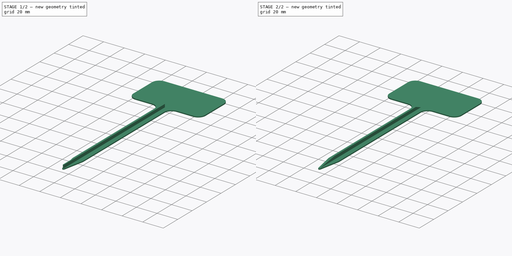
[diagram: build sequence overview — one tinted view per stage of 2, left to right]
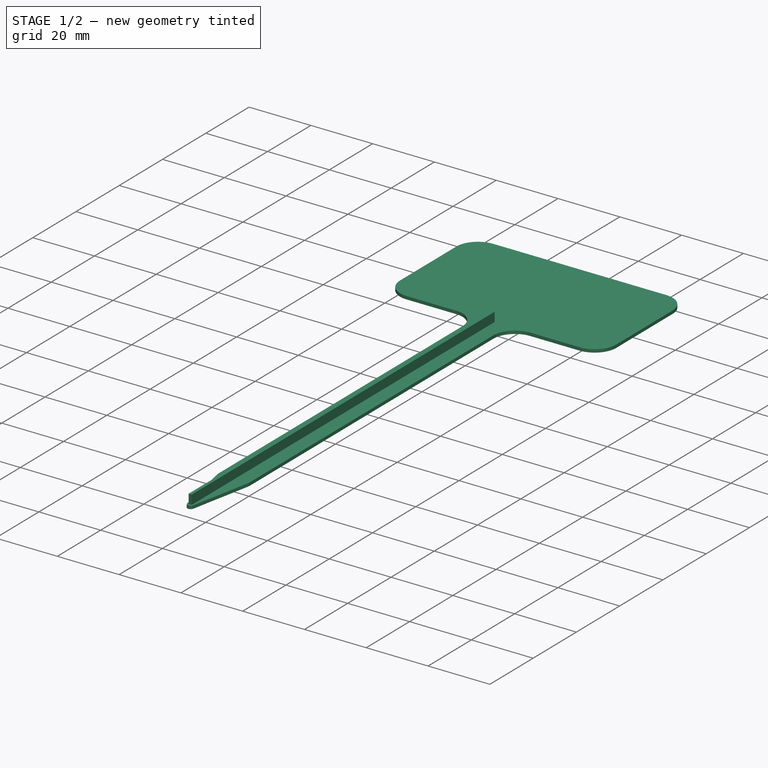
[diagram: stage 1 of 2 — iso view after this stage's code; geometry added in this stage tinted green]
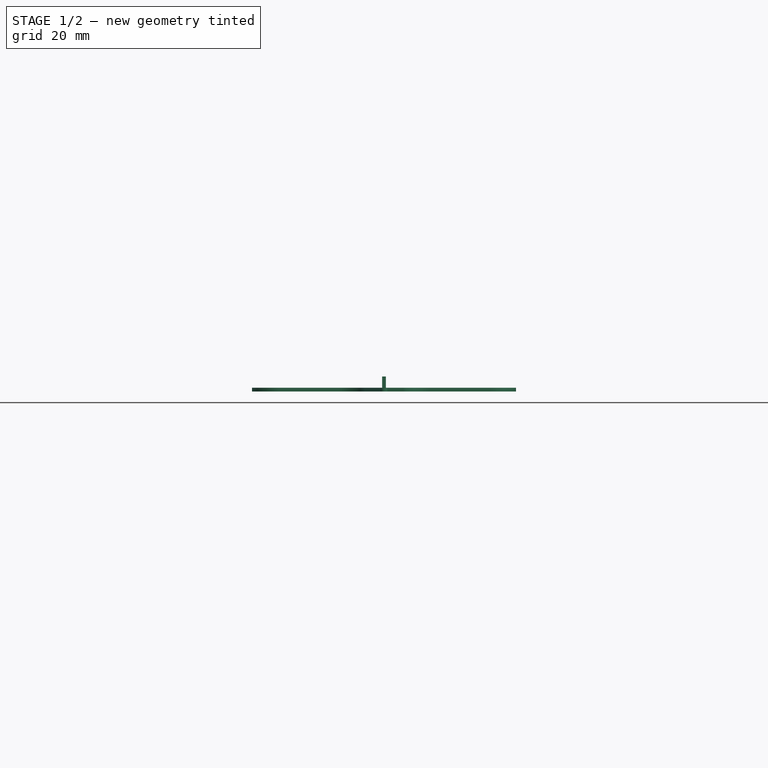
[diagram: stage 1 of 2 — front view after this stage's code; geometry added in this stage tinted green]
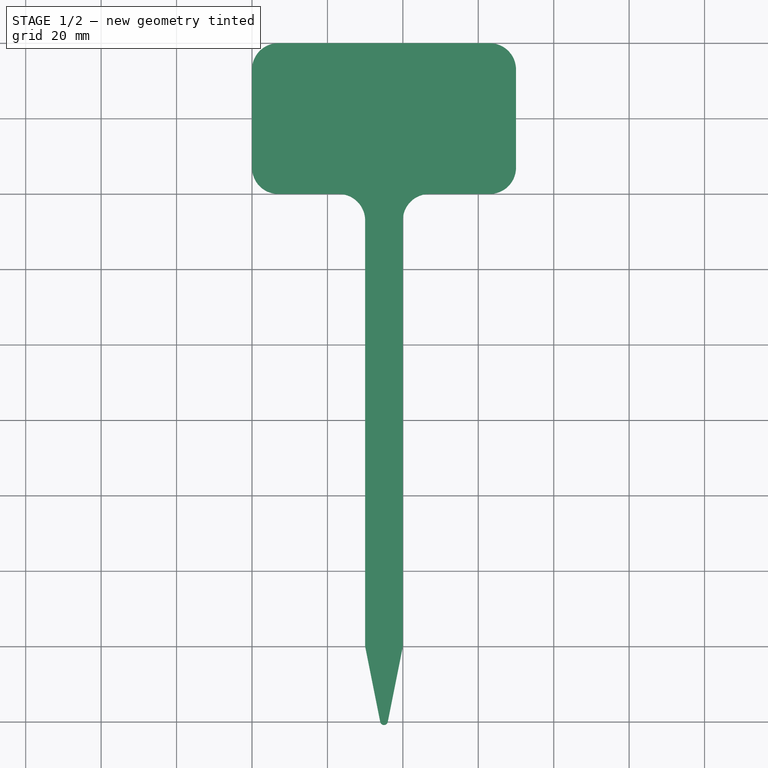
[diagram: stage 1 of 2 — top view after this stage's code; geometry added in this stage tinted green]
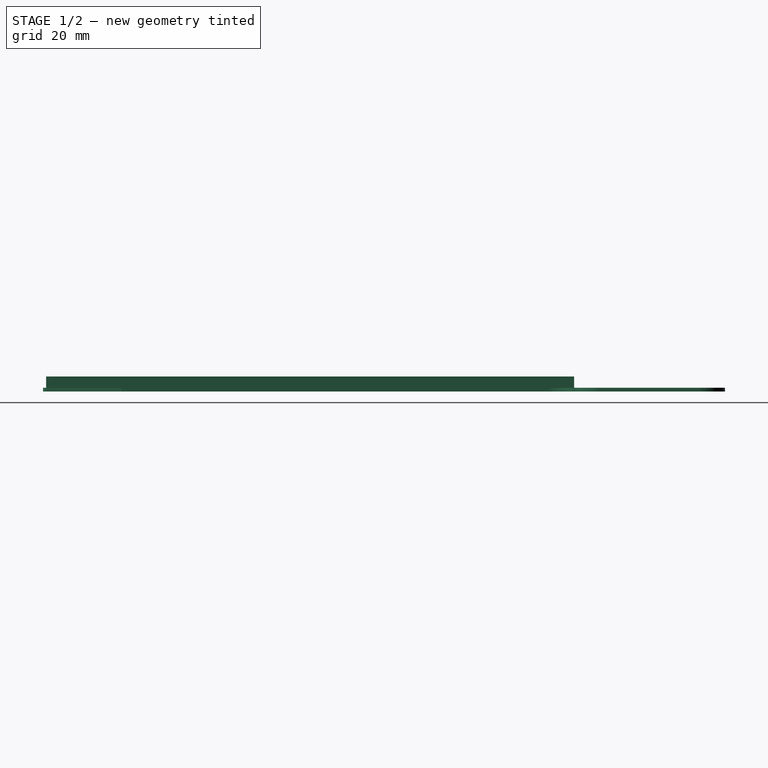
[diagram: stage 1 of 2 — right view after this stage's code; geometry added in this stage tinted green]
FCSTD DOCUMENT  (FreeCAD 0.19R24415 (Git))
Label: flower-sign
License: All rights reserved
LicenseURL: http://en.wikipedia.org/wiki/All_rights_reserved
objects: Sketcher::SketchObject×4, PartDesign::Pad×2, PartDesign::Pocket×2, PartDesign::Body×1
note: 13 computed .brp shape members not serialized (recipe doc carries the construction recipe); baked Part::Feature solids carry a one-line shape summary decoded from their .brp

FEATURE [Sketcher::SketchObject] Sketch
  FullyConstrained = true
  MapMode = 5
  Support = -> [XY_Plane]
  sketch-geometry (18):
    g0: LineSegment StartX=7 StartY=0 StartZ=0 EndX=63 EndY=0 EndZ=0
    g1: LineSegment StartX=70 StartY=-7 StartZ=0 EndX=70 EndY=-33 EndZ=0
    g2: LineSegment StartX=63 StartY=-40 StartZ=0 EndX=47 EndY=-40 EndZ=0
    g3: LineSegment StartX=0 StartY=-33 StartZ=0 EndX=0 EndY=-7 EndZ=0
    g4: LineSegment StartX=30 StartY=-47 StartZ=0 EndX=30 EndY=-160 EndZ=0
    g5: LineSegment StartX=40 StartY=-47 StartZ=0 EndX=40 EndY=-160 EndZ=0
    g6: LineSegment StartX=30 StartY=-160 StartZ=0 EndX=34 EndY=-180 EndZ=0
    g7: LineSegment StartX=36 StartY=-180 StartZ=0 EndX=40 EndY=-160 EndZ=0
    g8: LineSegment StartX=23 StartY=-40 StartZ=0 EndX=7 EndY=-40 EndZ=0
    g9: ArcOfCircle CenterX=23 CenterY=-47 CenterZ=0 NormalX=0 NormalY=0 NormalZ=1 AngleXU=0 Radius=7 StartAngle=2e-16 EndAngle=1.5708
    g10: ArcOfCircle CenterX=47 CenterY=-47 CenterZ=0 NormalX=0 NormalY=0 NormalZ=1 AngleXU=0 Radius=7 StartAngle=1.5708 EndAngle=3.14159
    g11: ArcOfCircle CenterX=7 CenterY=-33 CenterZ=0 NormalX=0 NormalY=0 NormalZ=1 AngleXU=0 Radius=7 StartAngle=3.14159 EndAngle=4.71239
    g12: ArcOfCircle CenterX=7 CenterY=-7 CenterZ=0 NormalX=0 NormalY=0 NormalZ=1 AngleXU=0 Radius=7 StartAngle=1.5708 EndAngle=3.14159
    g13: ArcOfCircle CenterX=63 CenterY=-7 CenterZ=0 NormalX=0 NormalY=0 NormalZ=1 AngleXU=0 Radius=7 StartAngle=0 EndAngle=1.5708
    g14: ArcOfCircle CenterX=63 CenterY=-33 CenterZ=0 NormalX=0 NormalY=0 NormalZ=1 AngleXU=0 Radius=7 StartAngle=4.71239 EndAngle=6.28319
    g15: LineSegment StartX=0 StartY=-7 StartZ=0 EndX=7 EndY=-7 EndZ=0
    g16: LineSegment StartX=23 StartY=-47 StartZ=0 EndX=30 EndY=-47 EndZ=0
    g17: ArcOfCircle CenterX=35 CenterY=-179.8 CenterZ=0 NormalX=0 NormalY=0 NormalZ=1 AngleXU=0 Radius=1.0198 StartAngle=3.33899 EndAngle=6.08579
  constraints (44):
    c: Horizontal(g0)
    c: Horizontal(g2)
    c: Vertical(g1)
    c: Vertical(g3)
    c: Vertical(g4)
    c: Vertical(g5)
    c: Coincident(g7,g5)
    c: Tangent(g2,g8)
    c: Tangent(g8,g9) = -1.5708
    c: Tangent(g4,g9) = 1.5708
    c: Tangent(g5,g10) = -1.5708
    c: Tangent(g2,g10) = -1.5708
    c: Tangent(g8,g11) = 1.5708
    c: Tangent(g3,g11) = 1.5708
    c: Tangent(g0,g12) = 1.5708
    c: Tangent(g3,g12) = 1.5708
    c: PointOnObject(g3,g-2)
    c: PointOnObject(g0,g-1)
    c: Tangent(g0,g13) = 1.5708
    c: Tangent(g1,g13) = 1.5708
    c: Tangent(g1,g14) = 1.5708
    c: Tangent(g2,g14) = 1.5708
    c: DistanceX(g3,g1) = 70
    c: DistanceY(g8,g0) = 40
    c: DistanceX(g3,g12) = 7
    c: Vertical(g12,g11)
    c: Horizontal(g11,g14)
    c: Vertical(g14,g13)
    c: Coincident(g15,g3)
    c: Coincident(g15,g12)
    c: Coincident(g16,g9)
    c: Coincident(g16,g4)
    c: Equal(g16,g15)
    c: Horizontal(g10,g9)
    c: Equal(g8,g2)
    c: DistanceX(g4,g5) = 10
    c: Coincident(g4,g6)
    c: Horizontal(g4,g5)
    c: Tangent(g6,g17) = -1.5708
    c: Tangent(g7,g17) = -1.5708
    c: Equal(g6,g7)
    c: DistanceX(g6,g7) = 2
    c: DistanceY(g5,g2) = 120
    c: DistanceY(g7,g5) = 20
FEATURE [PartDesign::Pad] Pad
  Direction = (1,1,1)
  Length = 1
  Length2 = 100
  Profile = -> Sketch
  Type = 0
FEATURE [Sketcher::SketchObject] Sketch001
  ExternalGeometry = -> [Pad]
  FullyConstrained = true
  MapMode = 5
  Placement = pos=(0,0,1) rot=(0,0,1;0rad)
  Support = -> [Pad]
  sketch-geometry (16):
    g0: LineSegment StartX=34 StartY=-180 StartZ=0 EndX=34.5 EndY=-180 EndZ=0
    g1: LineSegment StartX=36 StartY=-180 StartZ=0 EndX=35.5 EndY=-180 EndZ=0
    g2: LineSegment StartX=34.5 StartY=-180 StartZ=0 EndX=35.5 EndY=-180 EndZ=0
    g3: LineSegment StartX=40 StartY=-160 StartZ=0 EndX=35.5 EndY=-160 EndZ=0
    g4: LineSegment StartX=34.5 StartY=-160 StartZ=0 EndX=34.5 EndY=-180 EndZ=0
    g5: LineSegment StartX=35.5 StartY=-180 StartZ=0 EndX=35.5 EndY=-160 EndZ=0
    g6: LineSegment StartX=30 StartY=-160 StartZ=0 EndX=34.5 EndY=-160 EndZ=0
    g7: LineSegment StartX=30 StartY=-47 StartZ=0 EndX=34.5 EndY=-47 EndZ=0
    g8: LineSegment StartX=40 StartY=-47 StartZ=0 EndX=35.5 EndY=-47 EndZ=0
    g9: LineSegment StartX=23 StartY=-40 StartZ=0 EndX=34.5 EndY=-40 EndZ=0
    g10: LineSegment StartX=47 StartY=-40 StartZ=0 EndX=35.5 EndY=-40 EndZ=0
    g11: LineSegment StartX=34.5 StartY=-40 StartZ=0 EndX=35.5 EndY=-40 EndZ=0
    g12: LineSegment StartX=34.5 StartY=-40 StartZ=0 EndX=34.5 EndY=-47 EndZ=0
    g13: LineSegment StartX=35.5 StartY=-40 StartZ=0 EndX=35.5 EndY=-47 EndZ=0
    g14: LineSegment StartX=35.5 StartY=-47 StartZ=0 EndX=35.5 EndY=-160 EndZ=0
    g15: LineSegment StartX=34.5 StartY=-160 StartZ=0 EndX=34.5 EndY=-47 EndZ=0
  constraints (40):
    c: Coincident(g0,g-3)
    c: Coincident(g1,g-4)
    c: Horizontal(g1)
    c: Horizontal(g0)
    c: Coincident(g2,g0)
    c: Coincident(g2,g1)
    c: Equal(g0,g1)
    c: DistanceX(g2,g2) = 1
    c: Horizontal(g3)
    c: Coincident(g4,g2)
    c: Coincident(g5,g2)
    c: Coincident(g5,g3)
    c: Vertical(g5)
    c: Vertical(g4)
    c: Coincident(g6,g-6)
    c: Coincident(g6,g4)
    c: Horizontal(g6)
    c: Coincident(g3,g-5)
    c: Coincident(g7,g-6)
    c: Horizontal(g7)
    c: Coincident(g8,g-5)
    c: Horizontal(g8)
    c: Coincident(g9,g-7)
    c: Horizontal(g9)
    c: Coincident(g10,g-8)
    c: Horizontal(g10)
    c: Coincident(g11,g9)
    c: Coincident(g11,g10)
    c: Coincident(g12,g11)
    c: Coincident(g12,g7)
    c: Vertical(g12)
    c: Coincident(g13,g11)
    c: Coincident(g13,g8)
    c: Vertical(g13)
    c: Coincident(g14,g13)
    c: Coincident(g14,g5)
    c: Vertical(g14)
    c: Coincident(g15,g4)
    c: Coincident(g15,g12)
    c: Vertical(g15)
FEATURE [PartDesign::Pad] Pad001
  BaseFeature = -> Pad
  Direction = (1,1,1)
  Length = 3
  Length2 = 100
  Profile = -> Sketch001
  Type = 0
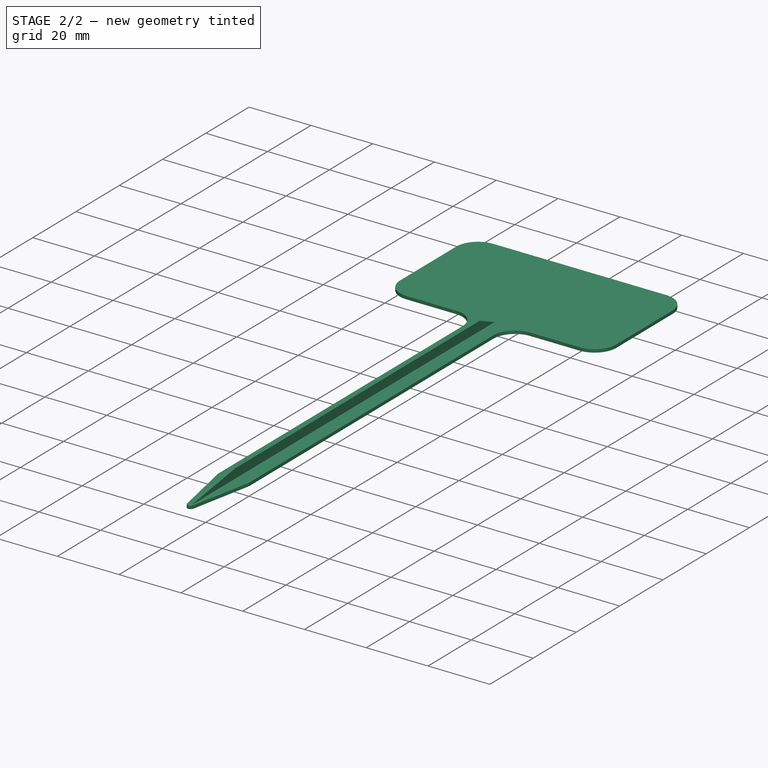
[diagram: stage 2 of 2 — iso view after this stage's code; geometry added in this stage tinted green]
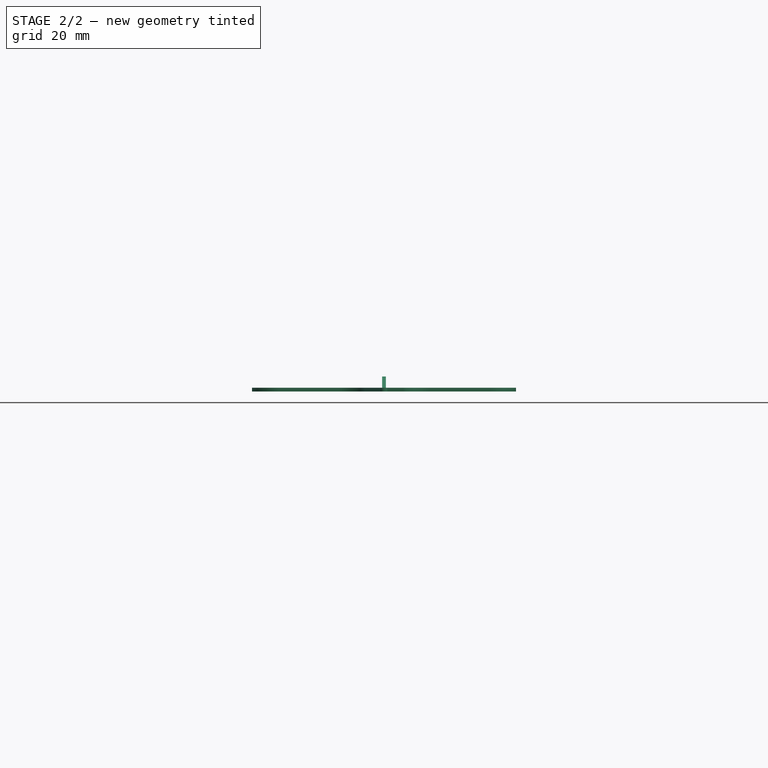
[diagram: stage 2 of 2 — front view after this stage's code; geometry added in this stage tinted green]
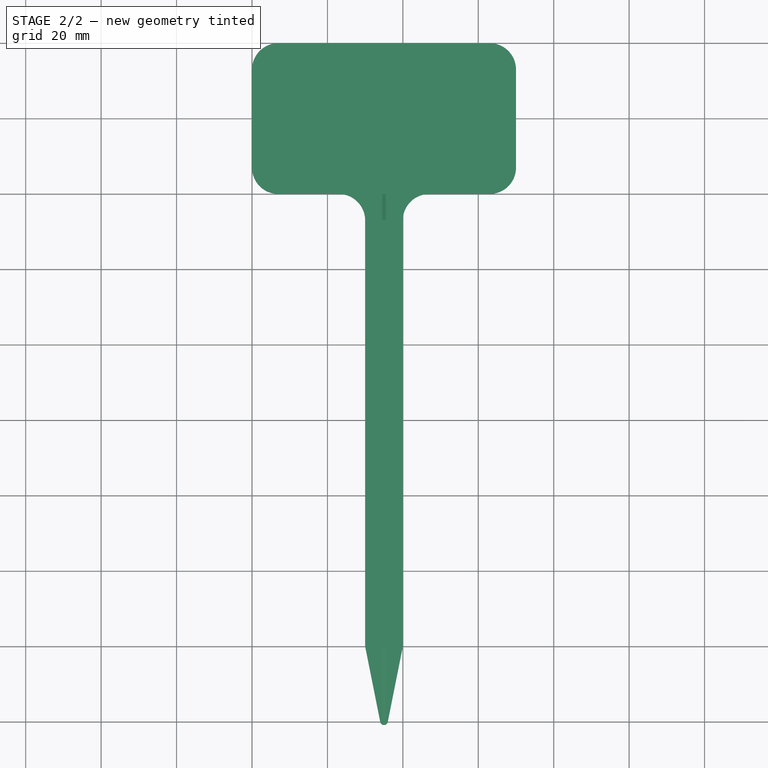
[diagram: stage 2 of 2 — top view after this stage's code; geometry added in this stage tinted green]
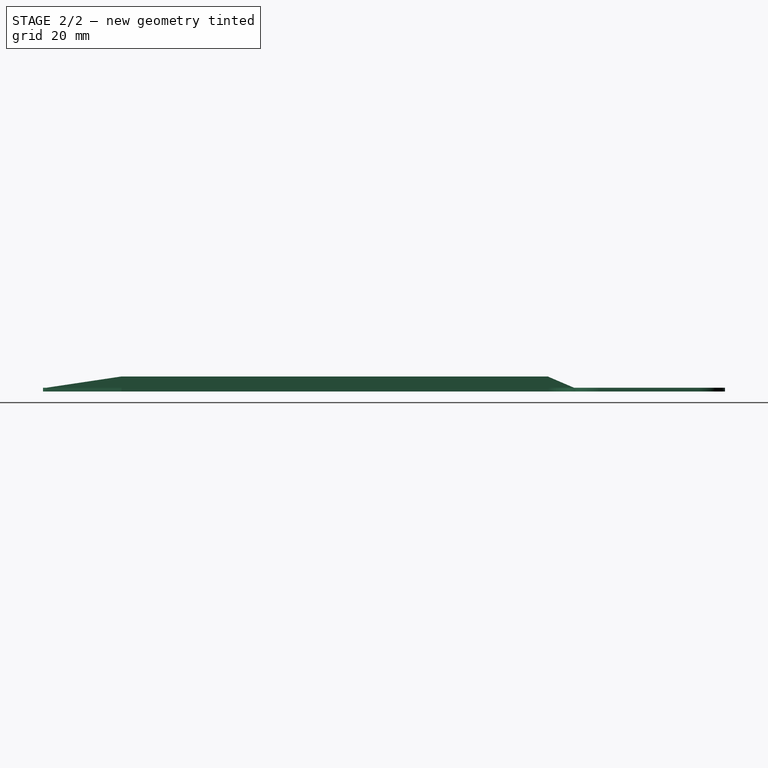
[diagram: stage 2 of 2 — right view after this stage's code; geometry added in this stage tinted green]
FEATURE [Sketcher::SketchObject] Sketch002
  ExternalGeometry = -> [Pad001]
  FullyConstrained = true
  MapMode = 5
  Placement = pos=(34.5,0,0) rot=(0.57735,-0.57735,-0.57735;2.0944rad)
  Support = -> [Pad001]
  sketch-geometry (3):
    g0: LineSegment StartX=160 StartY=4 StartZ=0 EndX=180 EndY=1 EndZ=0
    g1: LineSegment StartX=180 StartY=4 StartZ=0 EndX=160 EndY=4 EndZ=0
    g2: LineSegment StartX=180 StartY=4 StartZ=0 EndX=180 EndY=1 EndZ=0
  constraints (6):
    c: Coincident(g0,g-6)
    c: Coincident(g0,g-5)
    c: Coincident(g1,g-5)
    c: Coincident(g1,g0)
    c: Coincident(g2,g1)
    c: Coincident(g2,g0)
FEATURE [PartDesign::Pocket] Pocket
  BaseFeature = -> Pad001
  Length = 5
  Length2 = 100
  Profile = -> Sketch002
  Type = 1
FEATURE [Sketcher::SketchObject] Sketch003
  ExternalGeometry = -> [Pocket]
  FullyConstrained = true
  MapMode = 5
  Placement = pos=(34.5,0,0) rot=(0.57735,-0.57735,-0.57735;2.0944rad)
  Support = -> [Pocket]
  sketch-geometry (3):
    g0: LineSegment StartX=40 StartY=1 StartZ=0 EndX=40 EndY=4 EndZ=0
    g1: LineSegment StartX=40 StartY=4 StartZ=0 EndX=47 EndY=4 EndZ=0
    g2: LineSegment StartX=47 StartY=4 StartZ=0 EndX=40 EndY=1 EndZ=0
  constraints (6):
    c: Coincident(g0,g-5)
    c: Coincident(g0,g-4)
    c: Coincident(g1,g0)
    c: Coincident(g1,g-6)
    c: Coincident(g2,g1)
    c: Coincident(g2,g0)
FEATURE [PartDesign::Pocket] Pocket001
  BaseFeature = -> Pocket
  Length = 5
  Length2 = 100
  Profile = -> Sketch003
  Type = 1
FEATURE [PartDesign::Body] Body
  Group = -> [Sketch,Pad,Sketch001,Pad001,Sketch002,Pocket,Sketch003,Pocket001]
  Origin = -> Origin
  Tip = -> Pocket001
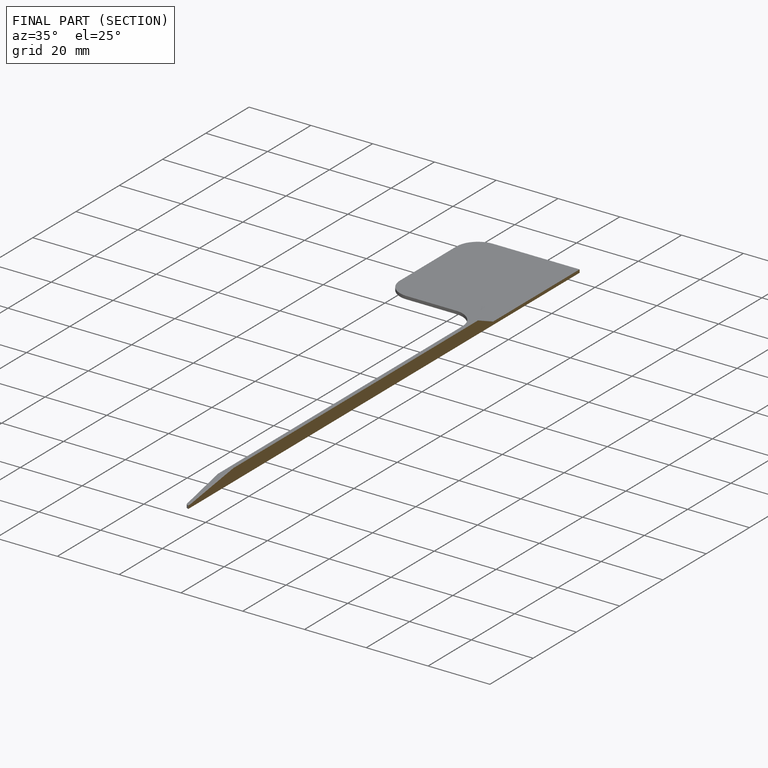
[diagram: finished part — half-section view (interior)]
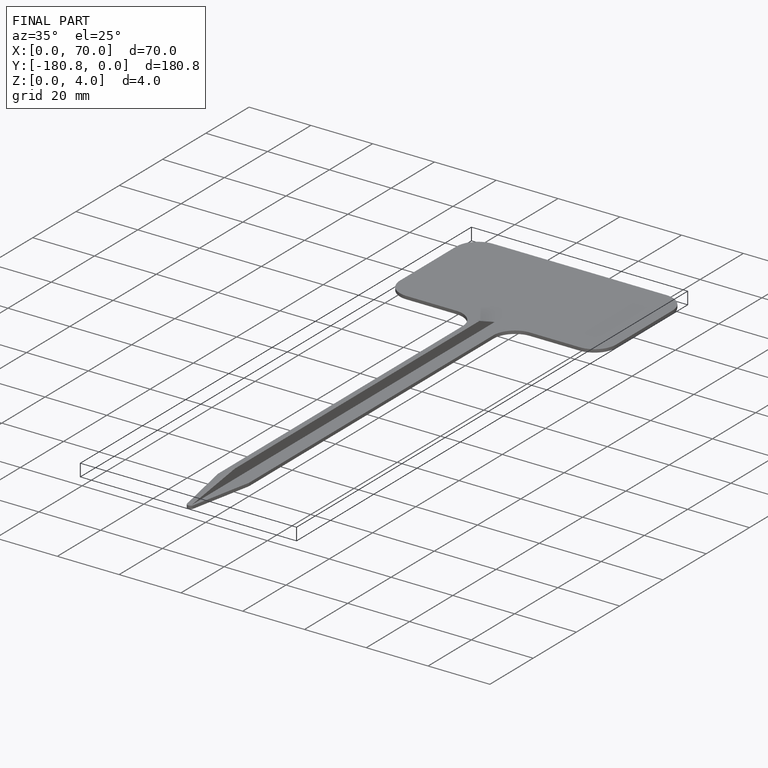
[diagram: finished part — iso view with bounding-box wireframe]
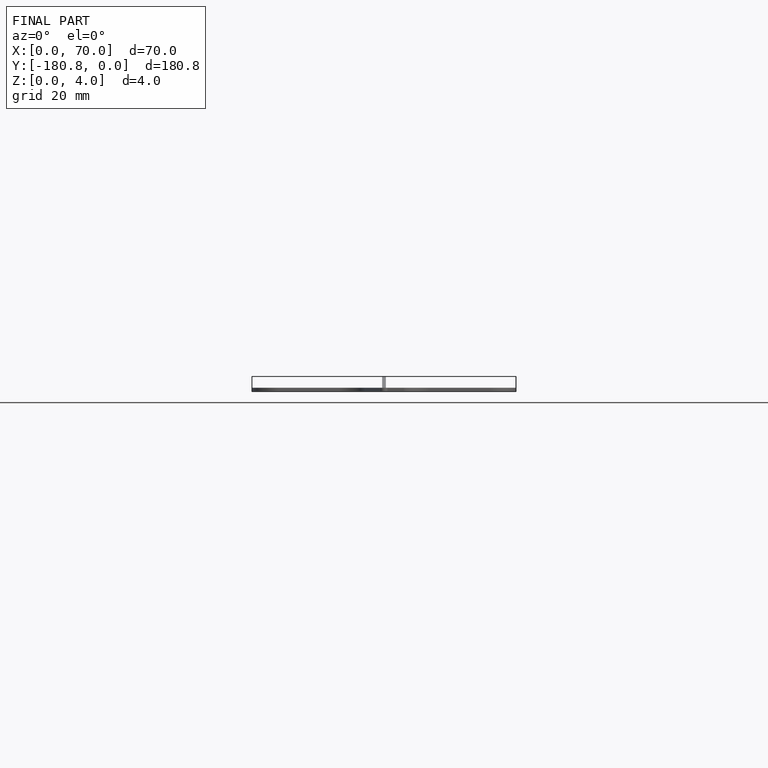
[diagram: finished part — front view with bounding-box wireframe]
